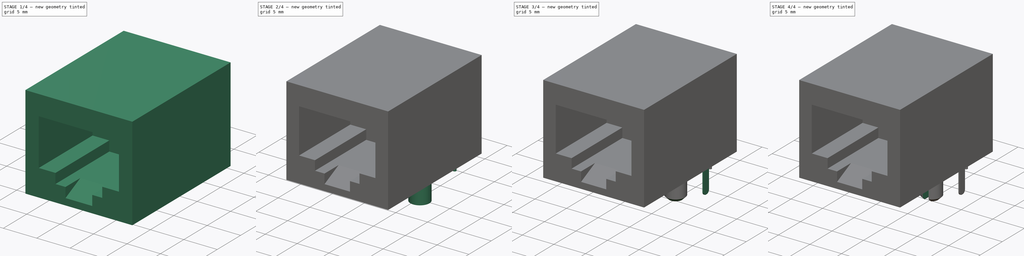
[diagram: build sequence overview — one tinted view per stage of 4, left to right]
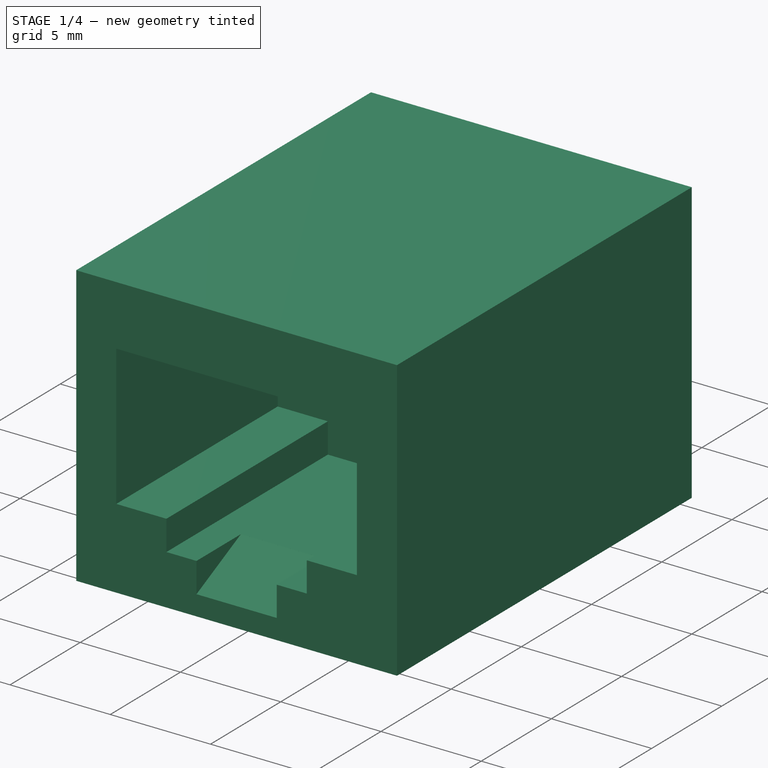
[diagram: stage 1 of 4 — iso view after this stage's code; geometry added in this stage tinted green]
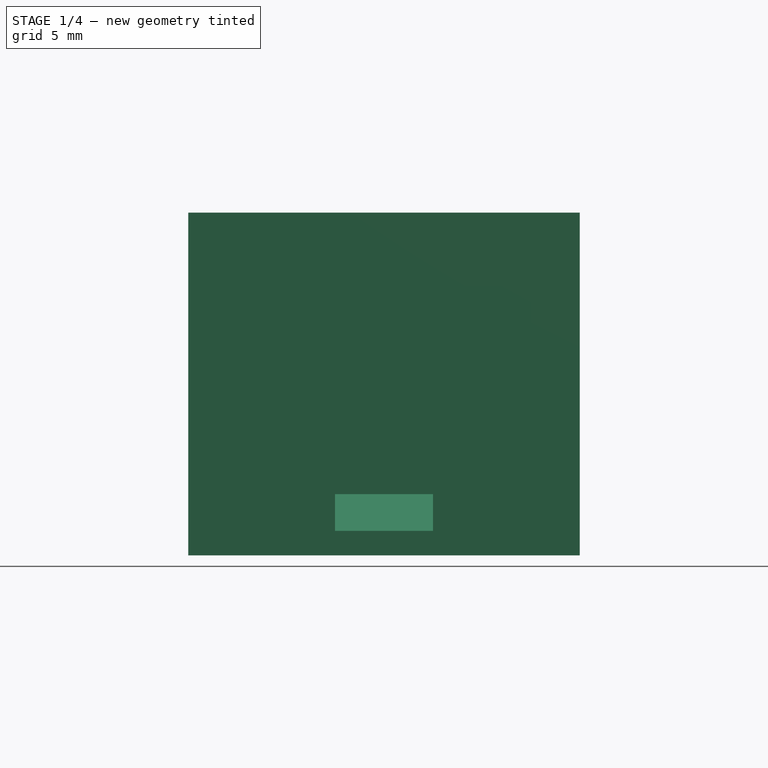
[diagram: stage 1 of 4 — front view after this stage's code; geometry added in this stage tinted green]
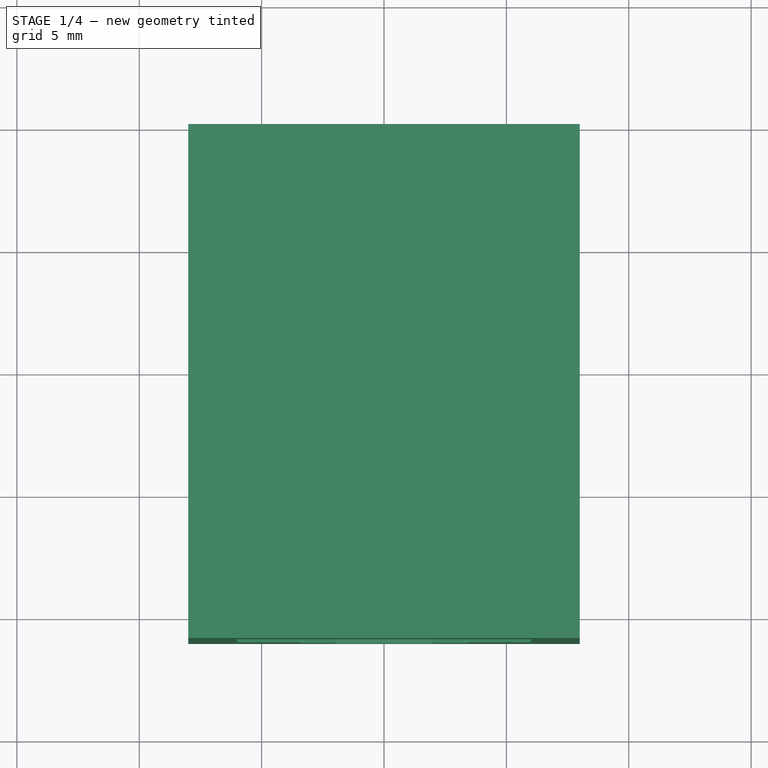
[diagram: stage 1 of 4 — top view after this stage's code; geometry added in this stage tinted green]
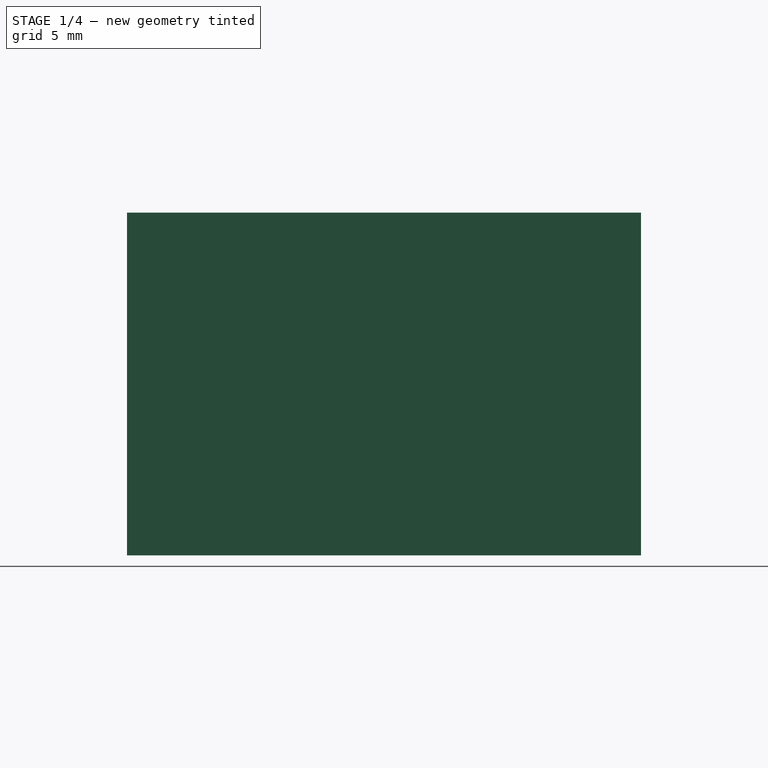
[diagram: stage 1 of 4 — right view after this stage's code; geometry added in this stage tinted green]
FCSTD DOCUMENT  (FreeCAD 0.21R33668 +26 (Git))
Label: RJ45
License: All rights reserved
LicenseURL: https://en.wikipedia.org/wiki/All_rights_reserved
objects: Sketcher::SketchObject×9, PartDesign::Pad×5, PartDesign::Pocket×4, PartDesign::Chamfer×2, PartDesign::Fillet×1, PartDesign::Body×1
note: 34 computed .brp shape members not serialized (recipe doc carries the construction recipe); baked Part::Feature solids carry a one-line shape summary decoded from their .brp

FEATURE [Sketcher::SketchObject] Sketch
  FullyConstrained = true
  MapMode = 5
  Support = -> [XY_Plane]
  sketch-geometry (4):
    g0: LineSegment StartX=-8 StartY=0 StartZ=0 EndX=8 EndY=0 EndZ=0
    g1: LineSegment StartX=8 StartY=0 StartZ=0 EndX=8 EndY=-21 EndZ=0
    g2: LineSegment StartX=8 StartY=-21 StartZ=0 EndX=-8 EndY=-21 EndZ=0
    g3: LineSegment StartX=-8 StartY=-21 StartZ=0 EndX=-8 EndY=0 EndZ=0
  constraints (11):
    c: Coincident(g0,g1)
    c: Coincident(g1,g2)
    c: Coincident(g2,g3)
    c: Coincident(g3,g0)
    c: Horizontal(g2)
    c: Vertical(g1)
    c: Vertical(g3)
    c: DistanceY(g1,g1) = 21
    c: DistanceX(g0,g0) = 16
    c: Symmetric(g0,g0,g-2)
    c: PointOnObject(g0,g-1)
FEATURE [PartDesign::Pad] Pad
  Direction = (0,0,1)
  Length = 14
  Length2 = 10
  Profile = -> Sketch
  ReferenceAxis = -> Sketch [N_Axis]
  Type = 0
FEATURE [Sketcher::SketchObject] Sketch001
  ExternalGeometry = -> [Pad]
  FullyConstrained = true
  MapMode = 5
  Placement = pos=(0,-21,0) rot=(1,0,0;1.5708rad)
  Support = -> [Pad]
  sketch-geometry (8):
    g0: LineSegment StartX=-6 StartY=11 StartZ=0 EndX=6 EndY=11 EndZ=0
    g1: LineSegment StartX=6 StartY=11 StartZ=0 EndX=6 EndY=4 EndZ=0
    g2: LineSegment StartX=-6 StartY=4 StartZ=0 EndX=-6 EndY=11 EndZ=0
    g3: LineSegment StartX=3.5 StartY=4 StartZ=0 EndX=3.5 EndY=2.5 EndZ=0
    g4: LineSegment StartX=-3.5 StartY=2.5 StartZ=0 EndX=-3.5 EndY=4 EndZ=0
    g5: LineSegment StartX=3.5 StartY=4 StartZ=0 EndX=6 EndY=4 EndZ=0
    g6: LineSegment StartX=-6 StartY=4 StartZ=0 EndX=-3.5 EndY=4 EndZ=0
    g7: LineSegment StartX=-3.5 StartY=2.5 StartZ=0 EndX=3.5 EndY=2.5 EndZ=0
  constraints (22):
    c: Coincident(g0,g1)
    c: Coincident(g2,g0)
    c: Vertical(g1)
    c: Vertical(g2)
    c: Coincident(g5,g3)
    c: Coincident(g5,g1)
    c: Coincident(g6,g2)
    c: Coincident(g6,g4)
    c: DistanceX(g0,g0) = 12
    c: DistanceY(g1,g1) = 7
    c: Symmetric(g0,g0,g-2)
    c: DistanceY(g0,g-3) = 3
    c: Coincident(g7,g4)
    c: Coincident(g7,g3)
    c: Horizontal(g7)
    c: Equal(g2,g1)
    c: DistanceX(g7,g7) = 7
    c: DistanceY(g-1,g3) = 4
    c: Vertical(g3)
    c: Vertical(g4)
    c: Symmetric(g4,g3,g-2)
    c: DistanceY(g-1,g3) = 2.5
FEATURE [PartDesign::Pocket] Pocket
  BaseFeature = -> Pad
  Direction = (0,1,-2e-16)
  Length = 11.5
  Length2 = 5
  Profile = -> Sketch001
  ReferenceAxis = -> Sketch001 [N_Axis]
  Type = 0
FEATURE [Sketcher::SketchObject] Sketch002
  ExternalGeometry = -> [Pocket]
  FullyConstrained = true
  MapMode = 5
  Placement = pos=(0,-21,0) rot=(1,0,0;1.5708rad)
  Support = -> [Pocket]
  sketch-geometry (4):
    g0: LineSegment StartX=-2 StartY=2.5 StartZ=0 EndX=2 EndY=2.5 EndZ=0
    g1: LineSegment StartX=2 StartY=2.5 StartZ=0 EndX=2 EndY=1 EndZ=0
    g2: LineSegment StartX=2 StartY=1 StartZ=0 EndX=-2 EndY=1 EndZ=0
    g3: LineSegment StartX=-2 StartY=1 StartZ=0 EndX=-2 EndY=2.5 EndZ=0
  constraints (11):
    c: Coincident(g0,g1)
    c: Coincident(g1,g2)
    c: Coincident(g2,g3)
    c: Coincident(g3,g0)
    c: Horizontal(g2)
    c: Vertical(g1)
    c: Vertical(g3)
    c: DistanceY(g-1,g1) = 1
    c: DistanceX(g0,g0) = 4
    c: Symmetric(g0,g0,g-2)
    c: PointOnObject(g0,g-3)
FEATURE [PartDesign::Pocket] Pocket001
  AlongSketchNormal = false
  BaseFeature = -> Pocket
  Direction = (0,3.5,1.66)
  Length = 3.5
  Length2 = 5
  Profile = -> Sketch002
  ReferenceAxis = -> Sketch002 [N_Axis]
  Type = 0
  UseCustomVector = true
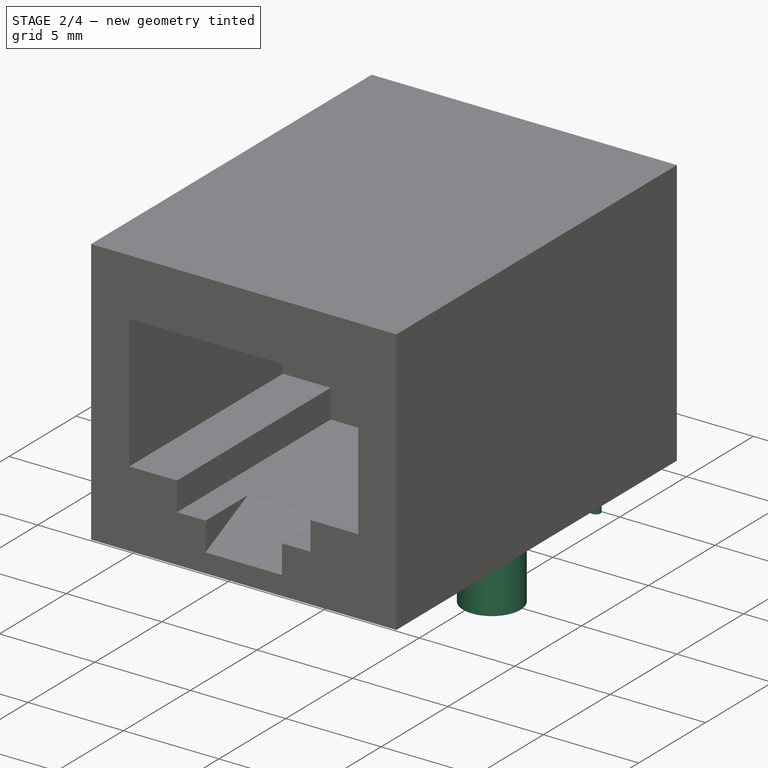
[diagram: stage 2 of 4 — iso view after this stage's code; geometry added in this stage tinted green]
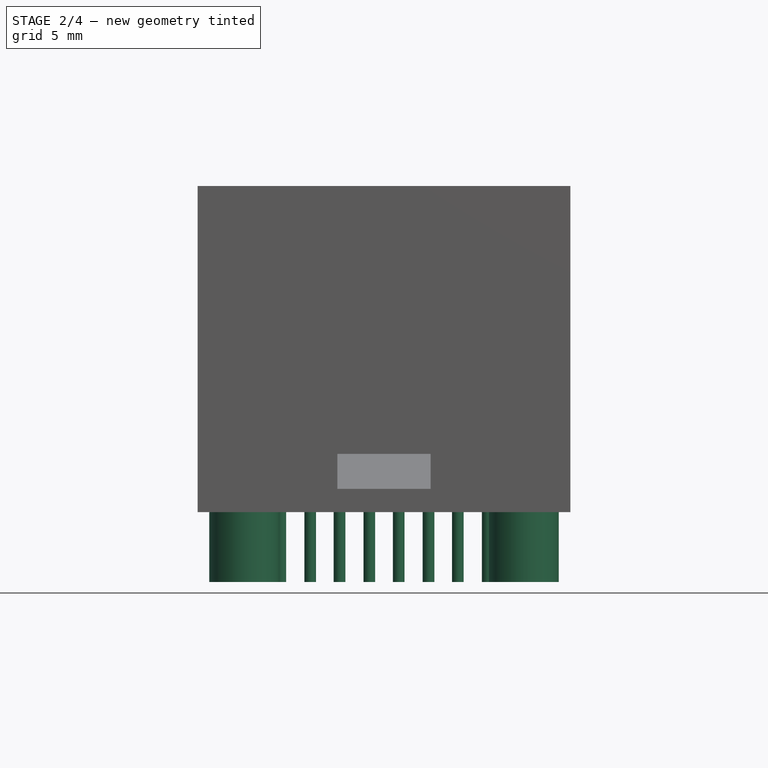
[diagram: stage 2 of 4 — front view after this stage's code; geometry added in this stage tinted green]
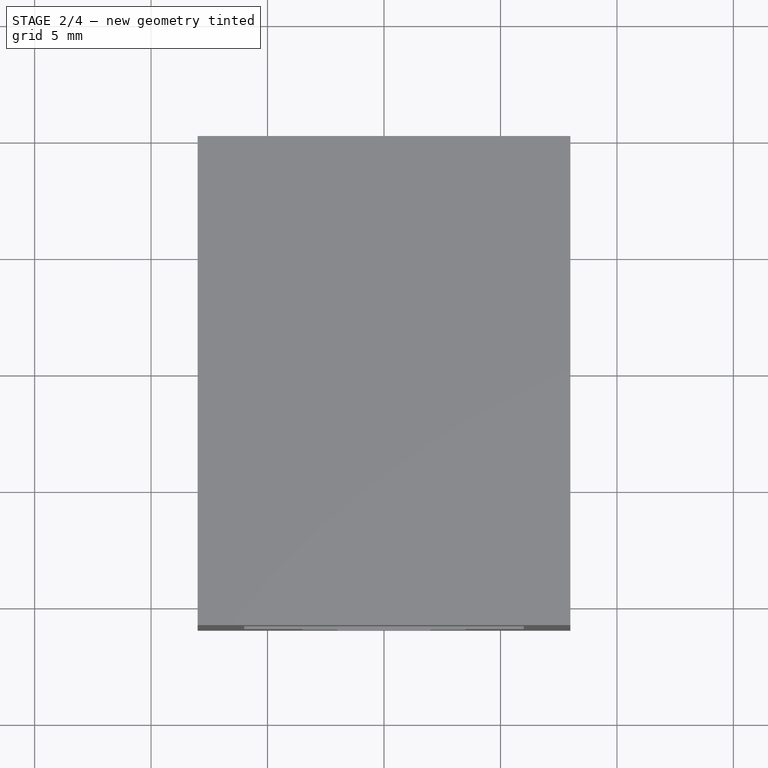
[diagram: stage 2 of 4 — top view after this stage's code; geometry added in this stage tinted green]
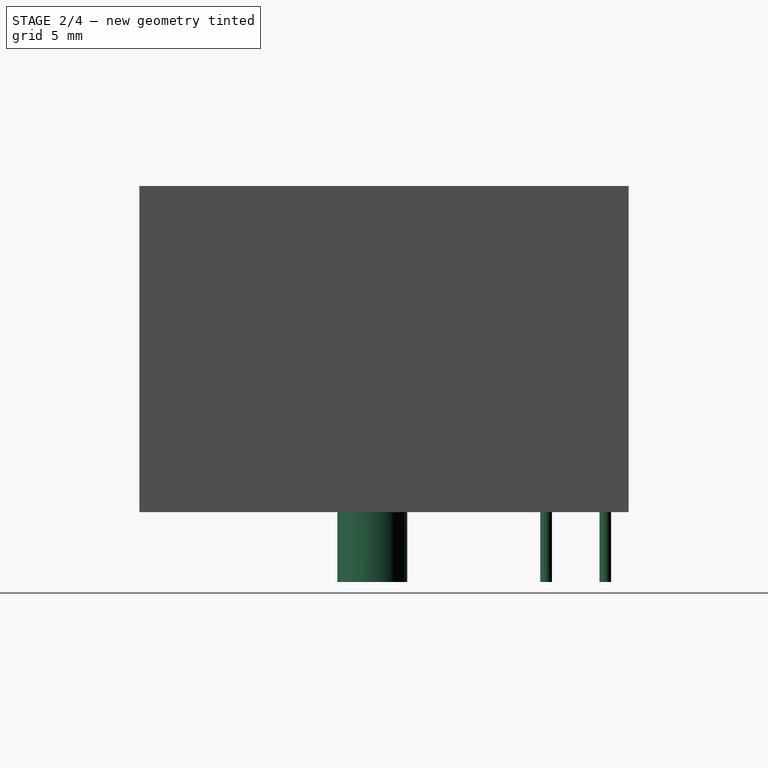
[diagram: stage 2 of 4 — right view after this stage's code; geometry added in this stage tinted green]
FEATURE [Sketcher::SketchObject] Sketch003
  ExternalGeometry = -> [Pocket001]
  FullyConstrained = true
  MapMode = 5
  Placement = pos=(0,0,0) rot=(1,0,0;3.14159rad)
  Support = -> [Pocket001]
  sketch-geometry (2):
    g0: Circle CenterX=-6 CenterY=11 CenterZ=0 NormalX=0 NormalY=0 NormalZ=1 AngleXU=0 Radius=1.5
    g1: Circle CenterX=6 CenterY=11 CenterZ=0 NormalX=0 NormalY=0 NormalZ=1 AngleXU=0 Radius=1.5
  constraints (5):
    c: Symmetric(g0,g1,g-2)
    c: Equal(g1,g0)
    c: Diameter(g1) = 3
    c: DistanceY(g1,g-3) = 10
    c: DistanceX(g0,g1) = 12
FEATURE [PartDesign::Pad] Pad001
  BaseFeature = -> Pocket001
  Direction = (0,0,-1)
  Length = 3
  Length2 = 10
  Profile = -> Sketch003
  ReferenceAxis = -> Sketch003 [N_Axis]
  Type = 0
FEATURE [Sketcher::SketchObject] Sketch006
  FullyConstrained = true
  MapMode = 5
  Placement = pos=(0,0,0) rot=(1,0,0;3.14159rad)
  sketch-geometry (4):
    g0: LineSegment StartX=-6.25 StartY=5 StartZ=0 EndX=6.25 EndY=5 EndZ=0
    g1: LineSegment StartX=6.25 StartY=5 StartZ=0 EndX=6.25 EndY=0 EndZ=0
    g2: LineSegment StartX=6.25 StartY=0 StartZ=0 EndX=-6.25 EndY=0 EndZ=0
    g3: LineSegment StartX=-6.25 StartY=0 StartZ=0 EndX=-6.25 EndY=5 EndZ=0
  constraints (11):
    c: Coincident(g0,g1)
    c: Coincident(g1,g2)
    c: Coincident(g2,g3)
    c: Coincident(g3,g0)
    c: Horizontal(g2)
    c: Vertical(g1)
    c: Vertical(g3)
    c: PointOnObject(g1,g-1)
    c: Symmetric(g0,g0,g-2)
    c: DistanceY(g1,g1) = 5
    c: DistanceX(g0,g0) = 12.5
FEATURE [PartDesign::Pocket] Pocket002
  BaseFeature = -> Pad001
  Direction = (0,0,1)
  Length = 1
  Length2 = 5
  Profile = -> Sketch006
  ReferenceAxis = -> Sketch006 [N_Axis]
  Type = 0
FEATURE [Sketcher::SketchObject] Sketch007
  FullyConstrained = true
  MapMode = 5
  Placement = pos=(0,0,1) rot=(1,0,0;3.14159rad)
  Support = -> [Pocket002]
  sketch-geometry (12):
    g0: LineSegment StartX=-4.45 StartY=3.54 StartZ=0 EndX=4.45 EndY=3.54 EndZ=0
    g1: LineSegment StartX=4.45 StartY=3.54 StartZ=0 EndX=4.45 EndY=1 EndZ=0
    g2: LineSegment StartX=4.45 StartY=1 StartZ=0 EndX=-4.45 EndY=1 EndZ=0
    g3: LineSegment StartX=-4.45 StartY=1 StartZ=0 EndX=-4.45 EndY=3.54 EndZ=0
    g4: Circle CenterX=-4.45 CenterY=3.54 CenterZ=0 NormalX=0 NormalY=0 NormalZ=1 AngleXU=0 Radius=0.25
    g5: Circle CenterX=-1.91 CenterY=3.54 CenterZ=0 NormalX=0 NormalY=0 NormalZ=1 AngleXU=0 Radius=0.25
    g6: Circle CenterX=0.63 CenterY=3.54 CenterZ=0 NormalX=0 NormalY=0 NormalZ=1 AngleXU=0 Radius=0.25
    g7: Circle CenterX=3.17 CenterY=3.54 CenterZ=0 NormalX=0 NormalY=0 NormalZ=1 AngleXU=0 Radius=0.25
    g8: Circle CenterX=4.45 CenterY=1 CenterZ=0 NormalX=0 NormalY=0 NormalZ=1 AngleXU=0 Radius=0.25
    g9: Circle CenterX=1.91 CenterY=1 CenterZ=0 NormalX=0 NormalY=0 NormalZ=1 AngleXU=0 Radius=0.25
    g10: Circle CenterX=-0.63 CenterY=1 CenterZ=0 NormalX=0 NormalY=0 NormalZ=1 AngleXU=0 Radius=0.25
    g11: Circle CenterX=-3.17 CenterY=1 CenterZ=0 NormalX=0 NormalY=0 NormalZ=1 AngleXU=0 Radius=0.25
  constraints (33):
    c: Coincident(g0,g1)
    c: Coincident(g1,g2)
    c: Coincident(g2,g3)
    c: Coincident(g3,g0)
    c: Horizontal(g2)
    c: Vertical(g1)
    c: Vertical(g3)
    c: Symmetric(g0,g0,g-2)
    c: DistanceX(g0,g0) = 8.9
    c: DistanceY(g1,g1) = 2.54
    c: DistanceY(g-1,g1) = 1
    c: Coincident(g4,g0)
    c: PointOnObject(g5,g0)
    c: PointOnObject(g6,g0)
    c: PointOnObject(g7,g0)
    c: Coincident(g8,g1)
    c: PointOnObject(g9,g2)
    c: PointOnObject(g10,g2)
    c: PointOnObject(g11,g2)
    c: Equal(g4,g5)
    c: Equal(g5,g6)
    c: Equal(g6,g7)
    c: Equal(g7,g8)
    c: Equal(g8,g9)
    c: Equal(g9,g10)
    c: Equal(g10,g11)
    c: Diameter(g4) = 0.5
    c: DistanceX(g4,g5) = 2.54
    c: DistanceX(g5,g6) = 2.54
    c: DistanceX(g6,g7) = 2.54
    c: DistanceX(g9,g8) = 2.54
    c: DistanceX(g10,g9) = 2.54
    c: DistanceX(g11,g10) = 2.54
FEATURE [PartDesign::Pad] Pad002
  BaseFeature = -> Pocket002
  Direction = (0,0,-1)
  Length = 4
  Length2 = 10
  Profile = -> Sketch007
  ReferenceAxis = -> Sketch007 [N_Axis]
  Type = 0
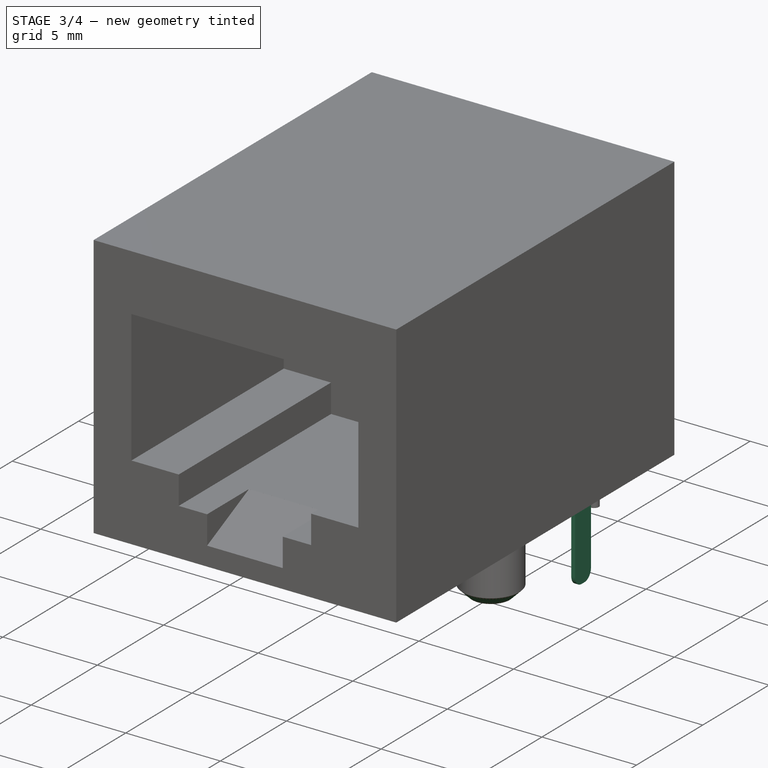
[diagram: stage 3 of 4 — iso view after this stage's code; geometry added in this stage tinted green]
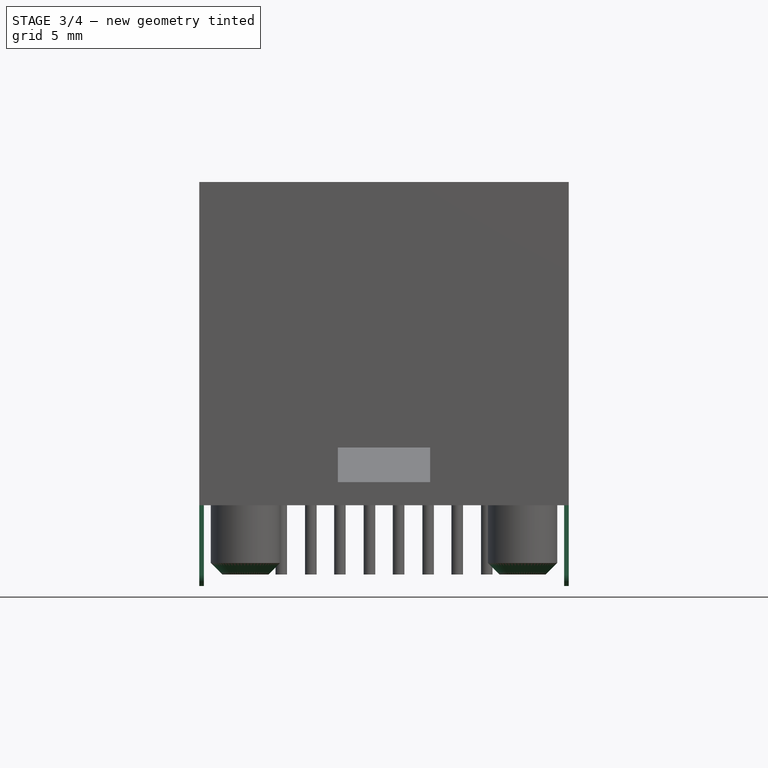
[diagram: stage 3 of 4 — front view after this stage's code; geometry added in this stage tinted green]
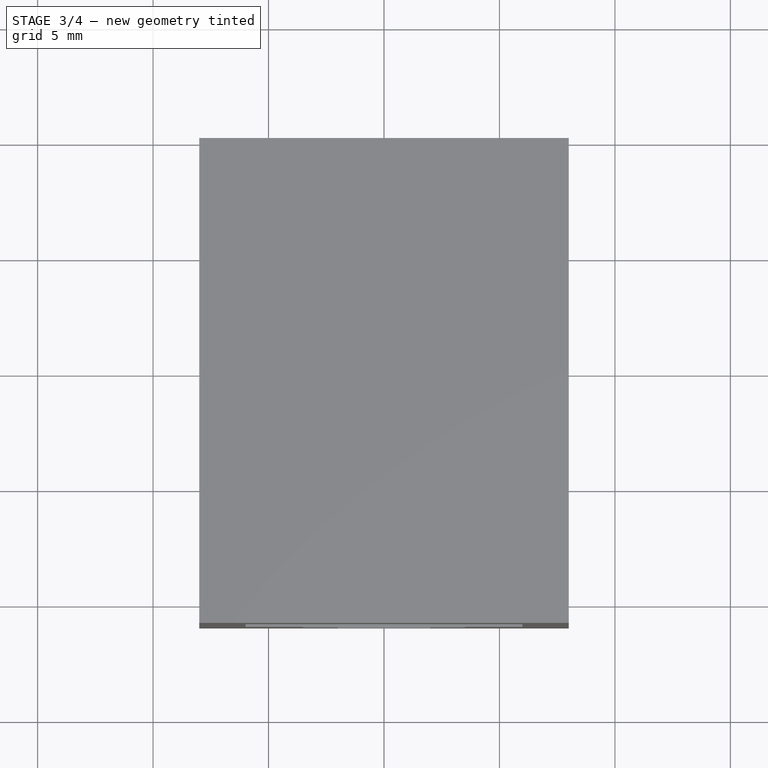
[diagram: stage 3 of 4 — top view after this stage's code; geometry added in this stage tinted green]
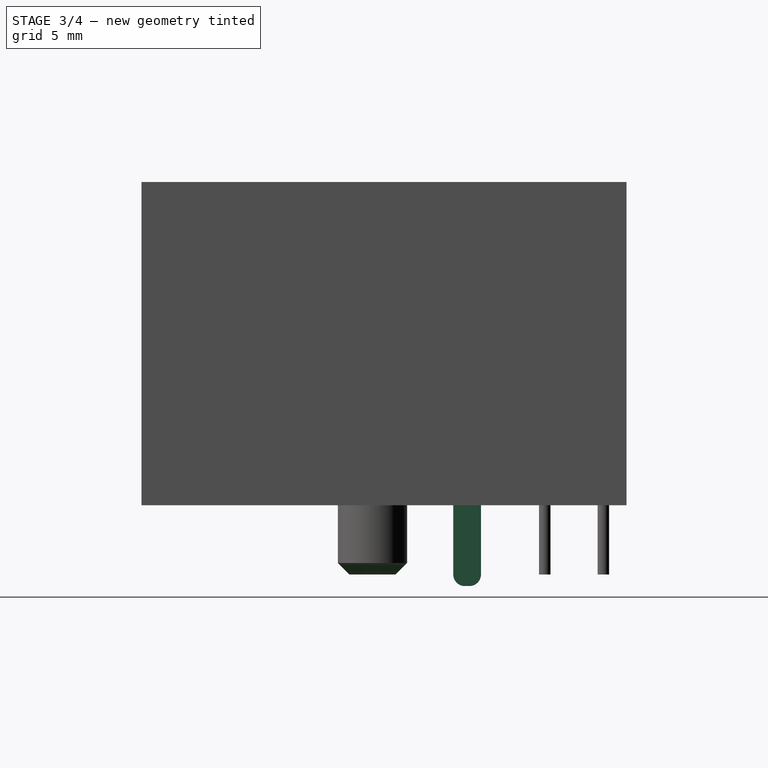
[diagram: stage 3 of 4 — right view after this stage's code; geometry added in this stage tinted green]
FEATURE [Sketcher::SketchObject] Sketch008
  ExternalGeometry = -> [Pad002]
  FullyConstrained = true
  MapMode = 5
  Placement = pos=(0,0,0) rot=(1,0,0;3.14159rad)
  Support = -> [Pad002]
  sketch-geometry (8):
    g0: LineSegment StartX=-8 StartY=7.5 StartZ=0 EndX=-7.8 EndY=7.5 EndZ=0
    g1: LineSegment StartX=-7.8 StartY=7.5 StartZ=0 EndX=-7.8 EndY=6.3 EndZ=0
    g2: LineSegment StartX=-7.8 StartY=6.3 StartZ=0 EndX=-8 EndY=6.3 EndZ=0
    g3: LineSegment StartX=-8 StartY=6.3 StartZ=0 EndX=-8 EndY=7.5 EndZ=0
    g4: LineSegment StartX=8 StartY=7.5 StartZ=0 EndX=7.8 EndY=7.5 EndZ=0
    g5: LineSegment StartX=7.8 StartY=7.5 StartZ=0 EndX=7.8 EndY=6.3 EndZ=0
    g6: LineSegment StartX=7.8 StartY=6.3 StartZ=0 EndX=8 EndY=6.3 EndZ=0
    g7: LineSegment StartX=8 StartY=6.3 StartZ=0 EndX=8 EndY=7.5 EndZ=0
  constraints (23):
    c: Coincident(g0,g1)
    c: Coincident(g1,g2)
    c: Coincident(g2,g3)
    c: Coincident(g3,g0)
    c: Vertical(g1)
    c: Vertical(g3)
    c: Coincident(g4,g5)
    c: Coincident(g5,g6)
    c: Coincident(g6,g7)
    c: Coincident(g7,g4)
    c: Horizontal(g6)
    c: Vertical(g5)
    c: Vertical(g7)
    c: Equal(g1,g5)
    c: Equal(g4,g0)
    c: Symmetric(g4,g0,g-2)
    c: Horizontal(g4)
    c: Horizontal(g0)
    c: Horizontal(g2)
    c: PointOnObject(g4,g-3)
    c: DistanceX(g4,g4) = 0.2
    c: DistanceY(g7,g7) = 1.2
    c: DistanceY(g-3,g4) = 7.5
FEATURE [PartDesign::Pad] Pad003
  BaseFeature = -> Pad002
  Direction = (0,0,-1)
  Length = 3.5
  Length2 = 10
  Profile = -> Sketch008
  ReferenceAxis = -> Sketch008 [N_Axis]
  Type = 0
FEATURE [PartDesign::Chamfer] Chamfer
  Angle = 45
  Base = -> Pad003 [Edge74,Edge72]
  BaseFeature = -> Pad003
  ChamferType = 0
  FlipDirection = false
  Size = 0.5
  Size2 = 1
  SupportTransform = false
  UseAllEdges = false
FEATURE [PartDesign::Fillet] Fillet
  Base = -> Chamfer [Edge66,Edge62,Edge43,Edge39]
  BaseFeature = -> Chamfer
  Radius = 0.5
  SupportTransform = false
  UseAllEdges = false
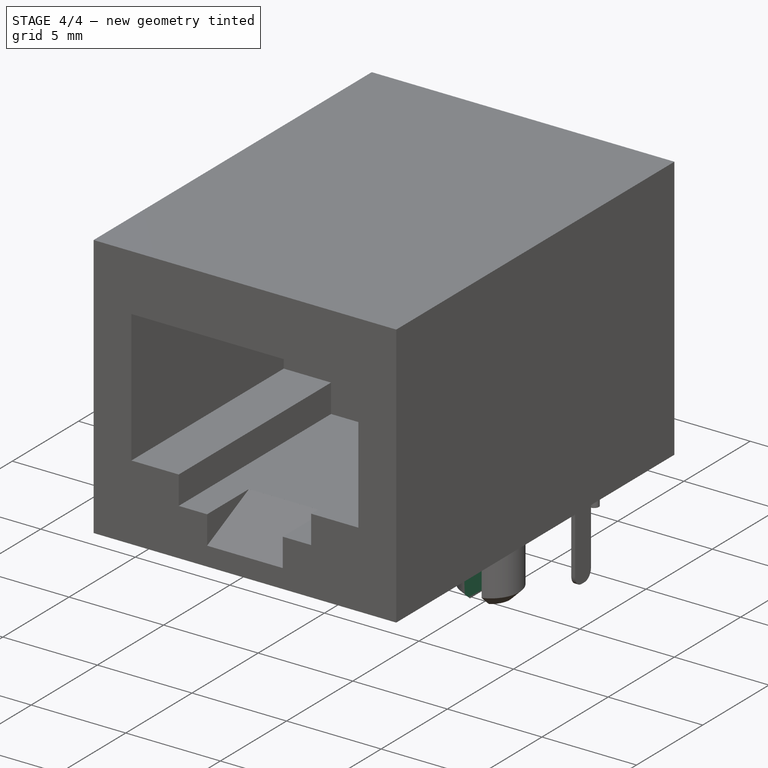
[diagram: stage 4 of 4 — iso view after this stage's code; geometry added in this stage tinted green]
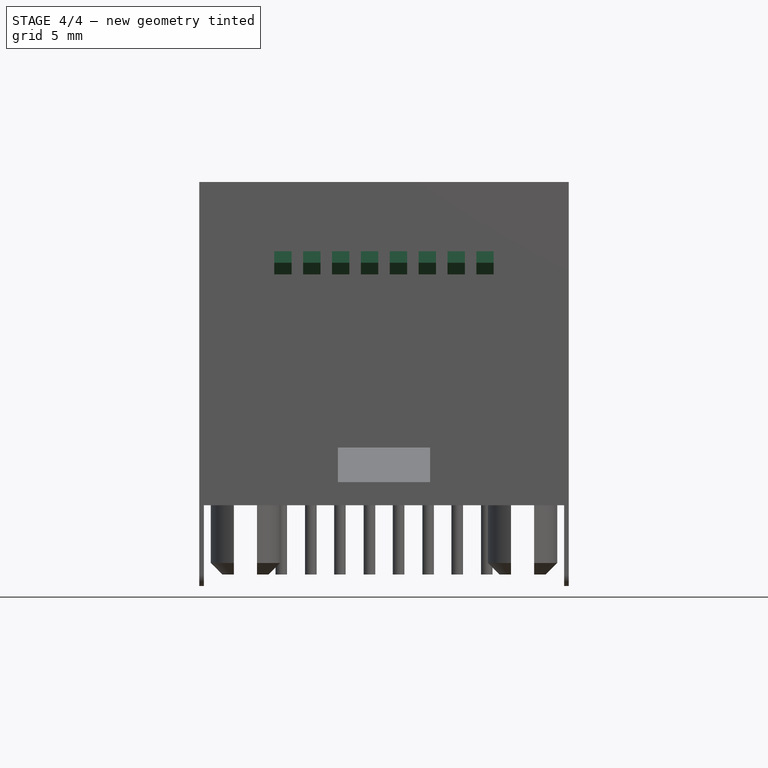
[diagram: stage 4 of 4 — front view after this stage's code; geometry added in this stage tinted green]
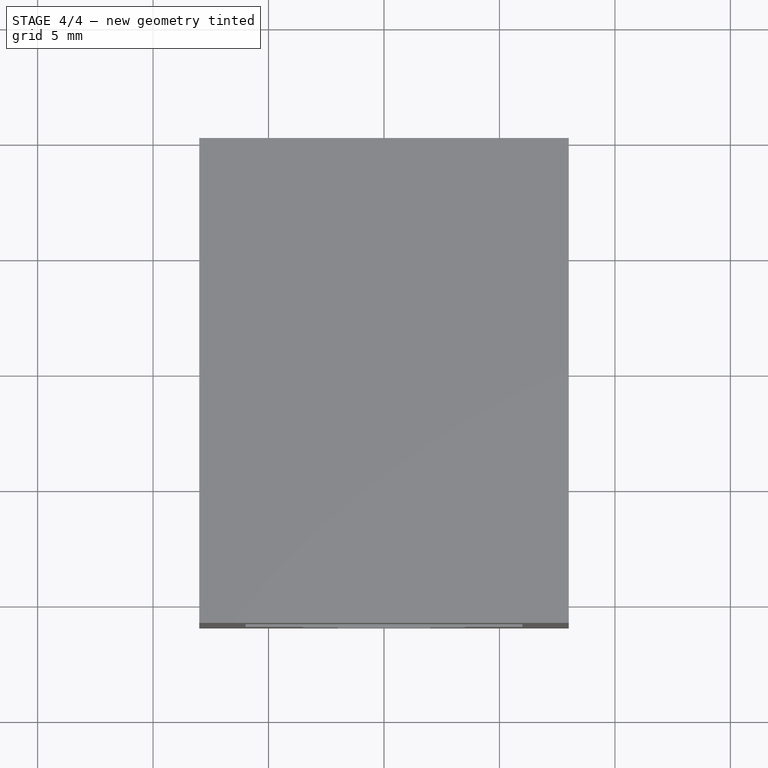
[diagram: stage 4 of 4 — top view after this stage's code; geometry added in this stage tinted green]
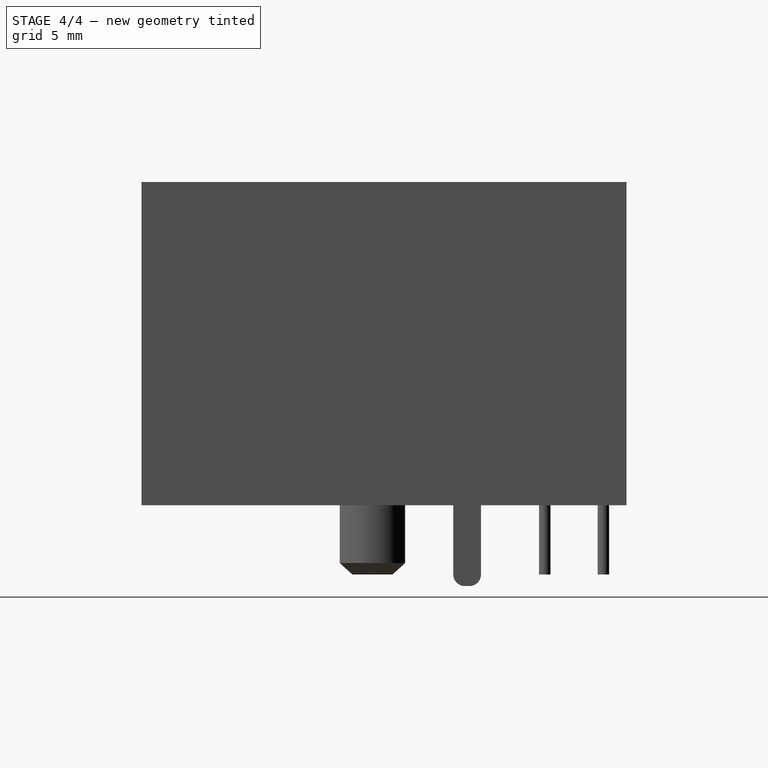
[diagram: stage 4 of 4 — right view after this stage's code; geometry added in this stage tinted green]
FEATURE [Sketcher::SketchObject] Sketch009
  ExternalGeometry = -> [Fillet]
  FullyConstrained = true
  MapMode = 5
  Placement = pos=(0,0,-3) rot=(1,0,0;3.14159rad)
  Support = -> [Fillet]
  sketch-geometry (8):
    g0: LineSegment StartX=-6.5 StartY=12.5 StartZ=0 EndX=-5.5 EndY=12.5 EndZ=0
    g1: LineSegment StartX=-5.5 StartY=12.5 StartZ=0 EndX=-5.50002 EndY=9.5 EndZ=0
    g2: LineSegment StartX=-5.50002 StartY=9.5 StartZ=0 EndX=-6.5 EndY=9.5 EndZ=0
    g3: LineSegment StartX=-6.5 StartY=9.5 StartZ=0 EndX=-6.5 EndY=12.5 EndZ=0
    g4: LineSegment StartX=5.5 StartY=12.5 StartZ=0 EndX=6.5 EndY=12.5 EndZ=0
    g5: LineSegment StartX=6.5 StartY=12.5 StartZ=0 EndX=6.5 EndY=9.5 EndZ=0
    g6: LineSegment StartX=6.5 StartY=9.5 StartZ=0 EndX=5.5 EndY=9.5 EndZ=0
    g7: LineSegment StartX=5.5 StartY=9.5 StartZ=0 EndX=5.5 EndY=12.5 EndZ=0
  constraints (23):
    c: Coincident(g0,g1)
    c: Coincident(g1,g2)
    c: Coincident(g2,g3)
    c: Coincident(g3,g0)
    c: Horizontal(g0)
    c: Horizontal(g2)
    c: Vertical(g3)
    c: Coincident(g4,g5)
    c: Coincident(g5,g6)
    c: Coincident(g6,g7)
    c: Coincident(g7,g4)
    c: Horizontal(g6)
    c: Vertical(g5)
    c: Vertical(g7)
    c: Tangent(g0,g-3)
    c: Tangent(g2,g-3)
    c: Tangent(g4,g-4)
    c: Tangent(g6,g-4)
    c: Equal(g0,g4)
    c: Equal(g1,g5)
    c: Symmetric(g4,g0,g-2)
    c: DistanceX(g4,g4) = 1
    c: DistanceX(g4,g-4) = 0.5
FEATURE [PartDesign::Pocket] Pocket003
  BaseFeature = -> Fillet
  Direction = (0,0,1)
  Length = 0
  Length2 = 5
  Profile = -> Sketch009
  ReferenceAxis = -> Sketch009 [N_Axis]
  Type = 3
  UpToFace = -> Fillet [Face4]
FEATURE [Sketcher::SketchObject] Sketch010
  ExternalGeometry = -> [Pocket003]
  FullyConstrained = true
  MapMode = 5
  Placement = pos=(0,2.4e-15,11) rot=(1,0,0;3.14159rad)
  Support = -> [Pocket003]
  sketch-geometry (32):
    g0: LineSegment StartX=-4.75 StartY=18.5 StartZ=0 EndX=-4 EndY=18.5 EndZ=0
    g1: LineSegment StartX=-4 StartY=18.5 StartZ=0 EndX=-4 EndY=9.5 EndZ=0
    g2: LineSegment StartX=-4 StartY=9.5 StartZ=0 EndX=-4.75 EndY=9.5 EndZ=0
    g3: LineSegment StartX=-4.75 StartY=9.5 StartZ=0 EndX=-4.75 EndY=18.5 EndZ=0
    g4: LineSegment StartX=-3.5 StartY=18.5 StartZ=0 EndX=-2.75 EndY=18.5 EndZ=0
    g5: LineSegment StartX=-2.75 StartY=18.5 StartZ=0 EndX=-2.75 EndY=9.5 EndZ=0
    g6: LineSegment StartX=-2.75 StartY=9.5 StartZ=0 EndX=-3.5 EndY=9.5 EndZ=0
    g7: LineSegment StartX=-3.5 StartY=9.5 StartZ=0 EndX=-3.5 EndY=18.5 EndZ=0
    g8: LineSegment StartX=-2.25 StartY=18.5 StartZ=0 EndX=-1.5 EndY=18.5 EndZ=0
    g9: LineSegment StartX=-1.5 StartY=18.5 StartZ=0 EndX=-1.5 EndY=9.5 EndZ=0
    g10: LineSegment StartX=-1.5 StartY=9.5 StartZ=0 EndX=-2.25 EndY=9.5 EndZ=0
    g11: LineSegment StartX=-2.25 StartY=9.5 StartZ=0 EndX=-2.25 EndY=18.5 EndZ=0
    g12: LineSegment StartX=-1 StartY=18.5 StartZ=0 EndX=-0.25 EndY=18.5 EndZ=0
    g13: LineSegment StartX=-0.25 StartY=18.5 StartZ=0 EndX=-0.25 EndY=9.5 EndZ=0
    g14: LineSegment StartX=-0.25 StartY=9.5 StartZ=0 EndX=-1 EndY=9.5 EndZ=0
    g15: LineSegment StartX=-1 StartY=9.5 StartZ=0 EndX=-1 EndY=18.5 EndZ=0
    g16: LineSegment StartX=0.25 StartY=18.5 StartZ=0 EndX=1 EndY=18.5 EndZ=0
    g17: LineSegment StartX=1 StartY=18.5 StartZ=0 EndX=1 EndY=9.5 EndZ=0
    g18: LineSegment StartX=1 StartY=9.5 StartZ=0 EndX=0.25 EndY=9.5 EndZ=0
    g19: LineSegment StartX=0.25 StartY=9.5 StartZ=0 EndX=0.25 EndY=18.5 EndZ=0
    g20: LineSegment StartX=1.5 StartY=18.5 StartZ=0 EndX=2.25 EndY=18.5 EndZ=0
    g21: LineSegment StartX=2.25 StartY=18.5 StartZ=0 EndX=2.25 EndY=9.5 EndZ=0
    g22: LineSegment StartX=2.25 StartY=9.5 StartZ=0 EndX=1.5 EndY=9.5 EndZ=0
    g23: LineSegment StartX=1.5 StartY=9.5 StartZ=0 EndX=1.5 EndY=18.5 EndZ=0
    g24: LineSegment StartX=2.75 StartY=18.5 StartZ=0 EndX=3.5 EndY=18.5 EndZ=0
    g25: LineSegment StartX=3.5 StartY=18.5 StartZ=0 EndX=3.5 EndY=9.5 EndZ=0
    g26: LineSegment StartX=3.5 StartY=9.5 StartZ=0 EndX=2.75 EndY=9.5 EndZ=0
    g27: LineSegment StartX=2.75 StartY=9.5 StartZ=0 EndX=2.75 EndY=18.5 EndZ=0
    g28: LineSegment StartX=4 StartY=18.5 StartZ=0 EndX=4.75 EndY=18.5 EndZ=0
    g29: LineSegment StartX=4.75 StartY=18.5 StartZ=0 EndX=4.75 EndY=9.5 EndZ=0
    g30: LineSegment StartX=4.75 StartY=9.5 StartZ=0 EndX=4 EndY=9.5 EndZ=0
    g31: LineSegment StartX=4 StartY=9.5 StartZ=0 EndX=4 EndY=18.5 EndZ=0
  constraints (92):
    c: Coincident(g0,g1)
    c: Coincident(g1,g2)
    c: Coincident(g2,g3)
    c: Coincident(g3,g0)
    c: Horizontal(g0)
    c: Horizontal(g2)
    c: Vertical(g1)
    c: Vertical(g3)
    c: PointOnObject(g1,g-3)
    c: DistanceX(g0,g0) = 0.75
    c: DistanceY(g0,g-4) = 2.5
    c: Coincident(g4,g5)
    c: Coincident(g5,g6)
    c: Coincident(g6,g7)
    c: Coincident(g7,g4)
    c: Horizontal(g4)
    c: Horizontal(g6)
    c: Vertical(g5)
    c: Vertical(g7)
    c: PointOnObject(g5,g-3)
    c: Coincident(g8,g9)
    c: Coincident(g9,g10)
    c: Coincident(g10,g11)
    c: Coincident(g11,g8)
    c: Horizontal(g8)
    c: Horizontal(g10)
    c: Vertical(g9)
    c: Vertical(g11)
    c: PointOnObject(g9,g-3)
    c: Coincident(g12,g13)
    c: Coincident(g13,g14)
    c: Coincident(g14,g15)
    c: Coincident(g15,g12)
    c: Horizontal(g12)
    c: Horizontal(g14)
    c: Vertical(g13)
    c: Vertical(g15)
    c: PointOnObject(g13,g-3)
    c: Coincident(g16,g17)
    c: Coincident(g17,g18)
    c: Coincident(g18,g19)
    c: Coincident(g19,g16)
    c: Horizontal(g18)
    c: Vertical(g17)
    c: Vertical(g19)
    c: PointOnObject(g17,g-3)
    c: Coincident(g20,g21)
    c: Coincident(g21,g22)
    c: Coincident(g22,g23)
    c: Coincident(g23,g20)
    c: Horizontal(g22)
    c: Vertical(g21)
    c: Vertical(g23)
    c: PointOnObject(g21,g-3)
    c: Coincident(g24,g25)
    c: Coincident(g25,g26)
    c: Coincident(g26,g27)
    c: Coincident(g27,g24)
    c: Horizontal(g26)
    c: Vertical(g25)
    c: Vertical(g27)
    c: PointOnObject(g25,g-3)
    c: Coincident(g28,g29)
    c: Coincident(g29,g30)
    c: Coincident(g30,g31)
    c: Coincident(g31,g28)
    c: Horizontal(g30)
    c: Vertical(g29)
    c: Vertical(g31)
    c: PointOnObject(g29,g-3)
    c: Equal(g5,g9)
    c: Equal(g9,g13)
    c: Equal(g13,g17)
    c: Equal(g17,g21)
    c: Equal(g21,g25)
    c: Equal(g25,g29)
    c: Equal(g29,g1)
    c: Equal(g0,g4)
    c: Equal(g4,g8)
    c: Equal(g8,g12)
    c: Equal(g12,g16)
    c: Equal(g16,g20)
    c: Equal(g20,g24)
    c: Equal(g24,g28)
    c: Symmetric(g0,g28,g-2)
    c: Symmetric(g4,g24,g-2)
    c: Symmetric(g20,g8,g-2)
    c: Symmetric(g16,g12,g-2)
    c: DistanceX(g0,g4) = 0.5
    c: DistanceX(g4,g8) = 0.5
    c: DistanceX(g8,g12) = 0.5
    c: DistanceX(g12,g16) = 0.5
FEATURE [PartDesign::Pad] Pad004
  BaseFeature = -> Pocket003
  Direction = (0,-2e-16,-1)
  Length = 1
  Length2 = 10
  Profile = -> Sketch010
  ReferenceAxis = -> Sketch010 [N_Axis]
  Type = 0
FEATURE [PartDesign::Chamfer] Chamfer001
  Angle = 45
  Base = -> Pad004 [Edge287,Edge282,Edge277,Edge272,Edge267,Edge262,Edge257,Edge252]
  BaseFeature = -> Pad004
  ChamferType = 0
  FlipDirection = false
  Size = 0.5
  Size2 = 1
  SupportTransform = false
  UseAllEdges = false
FEATURE [PartDesign::Body] Body
  Group = -> [Sketch,Pad,Sketch001,Pocket,Sketch002,Pocket001,Sketch003,Pad001,Sketch006,Pocket002,Sketch007,Pad002,Sketch008,Pad003,Chamfer,Fillet,Sketch009,Pocket003,Sketch010,Pad004,Chamfer001]
  Origin = -> Origin
  Tip = -> Chamfer001
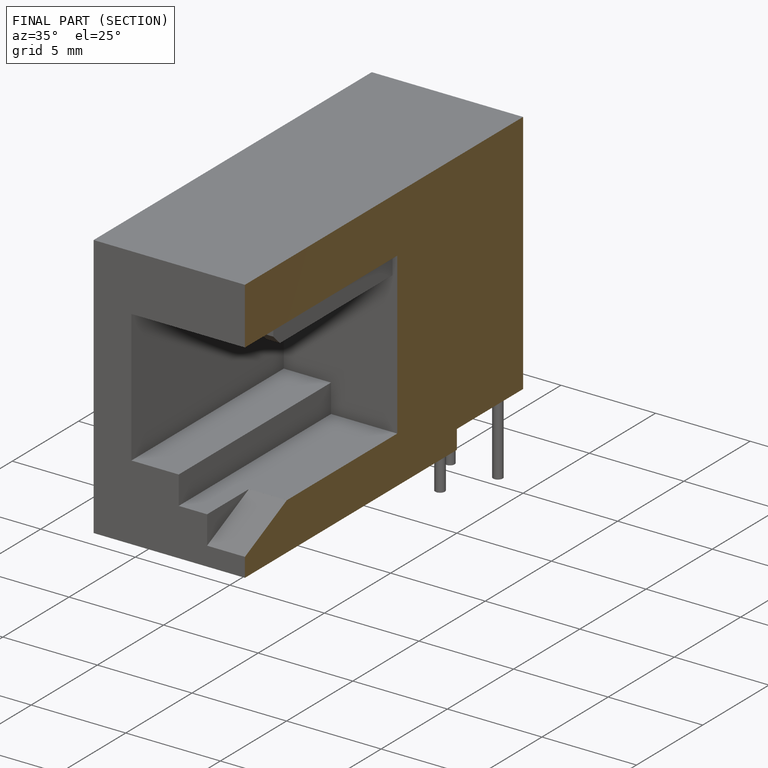
[diagram: finished part — half-section view (interior)]
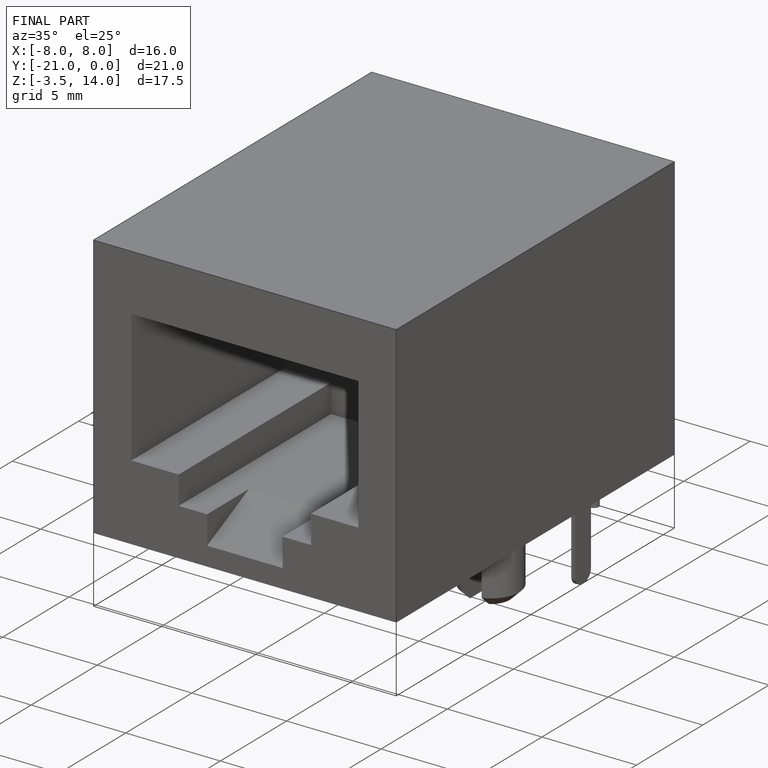
[diagram: finished part — iso view with bounding-box wireframe]
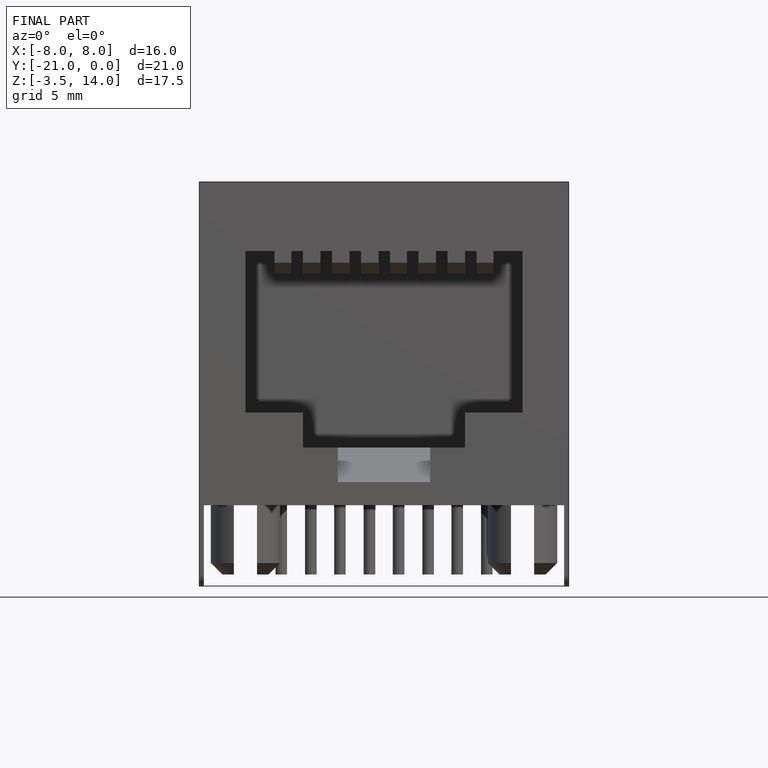
[diagram: finished part — front view with bounding-box wireframe]
